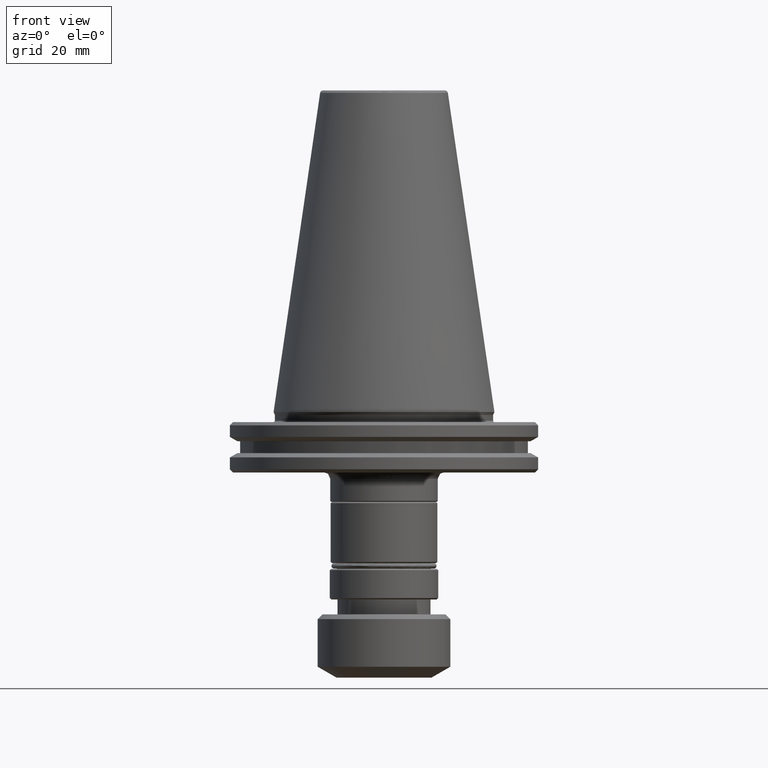
[diagram: clean part render]
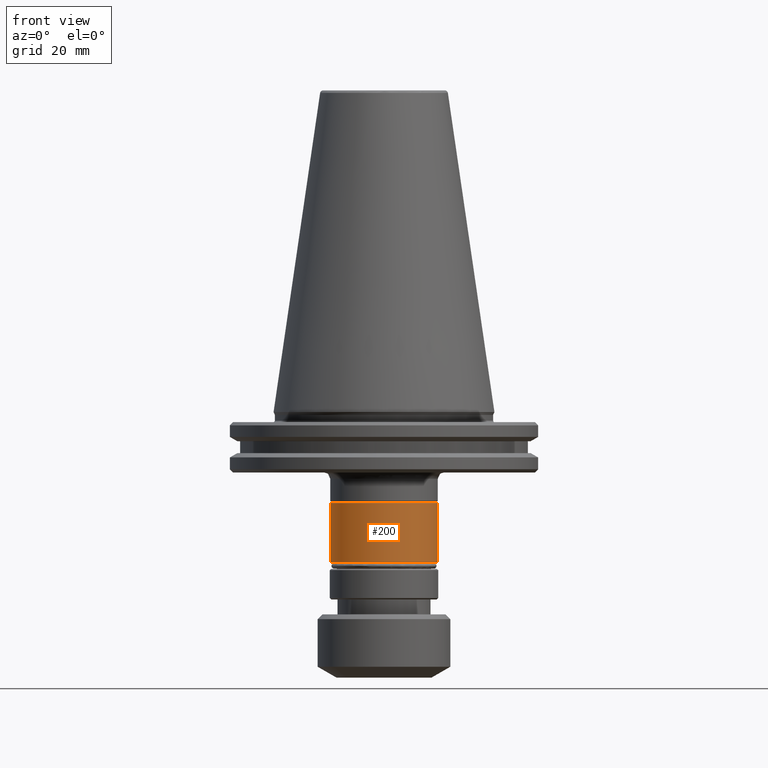
[diagram: same view with one face highlighted and labeled with its STEP entity id]
A machine part, front view. The second image highlights one B-rep face of the part: STEP entity #200.
In plain terms, the highlighted cylindrical surface (partial cylindrical patch) has radius 16.9 mm, axis along (0, 0, 1).
Its self-contained STEP definition (entity closure, byte-faithful):
#22 = AXIS2_PLACEMENT_3D ( 'NONE', #1212, #1209, #1205 ) ;
#38 = EDGE_CURVE ( 'NONE', #600, #1345, #170, .T. ) ;
#43 = CARTESIAN_POINT ( 'NONE',  ( 16.89999999999999900, 0.0000000000000000000, -28.80000000000001500 ) ) ;
#44 = DIRECTION ( 'NONE',  ( -1.000000000000000000, 0.0000000000000000000, 0.0000000000000000000 ) ) ;
#50 = ORIENTED_EDGE ( 'NONE', *, *, #507, .F. ) ;
#66 = VERTEX_POINT ( 'NONE', #1746 ) ;
#153 = DIRECTION ( 'NONE',  ( 0.0000000000000000000, 0.0000000000000000000, 1.000000000000000000 ) ) ;
#161 = CARTESIAN_POINT ( 'NONE',  ( -16.89999999999999900, 2.069653090559026900E-015, 0.0000000000000000000 ) ) ;
#170 = LINE ( 'NONE', #1855, #1971 ) ;
#188 = ORIENTED_EDGE ( 'NONE', *, *, #2100, .F. ) ;
#200 = ADVANCED_FACE ( 'NONE', ( #2342 ), #494, .T. ) ;
#474 = AXIS2_PLACEMENT_3D ( 'NONE', #1254, #1252, #1249 ) ;
#481 = EDGE_CURVE ( 'NONE', #2270, #1920, #2069, .T. ) ;
#494 = CYLINDRICAL_SURFACE ( 'NONE', #1460, 16.89999999999999900 ) ;
#507 = EDGE_CURVE ( 'NONE', #66, #1345, #2376, .T. ) ;
#530 = ORIENTED_EDGE ( 'NONE', *, *, #481, .T. ) ;
#551 = CIRCLE ( 'NONE', #1501, 16.89999999999999900 ) ;
#600 = VERTEX_POINT ( 'NONE', #1081 ) ;
#616 = DIRECTION ( 'NONE',  ( 0.0000000000000000000, 0.0000000000000000000, 1.000000000000000000 ) ) ;
#743 = VERTEX_POINT ( 'NONE', #960 ) ;
#870 = CARTESIAN_POINT ( 'NONE',  ( -16.89999999999999900, 2.069653090559026900E-015, -47.40000000000002000 ) ) ;
#960 = CARTESIAN_POINT ( 'NONE',  ( -16.89999999999999900, 2.069653090559026900E-015, -28.80000000000001500 ) ) ;
#1081 = CARTESIAN_POINT ( 'NONE',  ( 16.89999999999999900, 0.0000000000000000000, -47.40000000000002000 ) ) ;
#1205 = DIRECTION ( 'NONE',  ( -1.000000000000000000, 0.0000000000000000000, 0.0000000000000000000 ) ) ;
#1209 = DIRECTION ( 'NONE',  ( -0.0000000000000000000, -0.0000000000000000000, 1.000000000000000000 ) ) ;
#1212 = CARTESIAN_POINT ( 'NONE',  ( 0.0000000000000000000, 0.0000000000000000000, -28.80000000000001500 ) ) ;
#1234 = EDGE_CURVE ( 'NONE', #2270, #743, #1926, .T. ) ;
#1249 = DIRECTION ( 'NONE',  ( 1.000000000000000000, 0.0000000000000000000, 0.0000000000000000000 ) ) ;
#1252 = DIRECTION ( 'NONE',  ( 0.0000000000000000000, 0.0000000000000000000, 1.000000000000000000 ) ) ;
#1254 = CARTESIAN_POINT ( 'NONE',  ( 0.0000000000000000000, 0.0000000000000000000, -47.40000000000002000 ) ) ;
#1315 = CIRCLE ( 'NONE', #1665, 16.89999999999999900 ) ;
#1345 = VERTEX_POINT ( 'NONE', #43 ) ;
#1409 = CARTESIAN_POINT ( 'NONE',  ( 0.0000000000000000000, -16.90000000000000600, -47.40000000000002000 ) ) ;
#1460 = AXIS2_PLACEMENT_3D ( 'NONE', #1703, #2324, #1705 ) ;
#1463 = ORIENTED_EDGE ( 'NONE', *, *, #38, .T. ) ;
#1501 = AXIS2_PLACEMENT_3D ( 'NONE', #2295, #616, #2015 ) ;
#1541 = EDGE_CURVE ( 'NONE', #1920, #600, #551, .T. ) ;
#1636 = EDGE_LOOP ( 'NONE', ( #2361, #530, #1785, #1463, #50, #188 ) ) ;
#1665 = AXIS2_PLACEMENT_3D ( 'NONE', #1870, #2027, #44 ) ;
#1703 = CARTESIAN_POINT ( 'NONE',  ( 0.0000000000000000000, 0.0000000000000000000, 0.0000000000000000000 ) ) ;
#1705 = DIRECTION ( 'NONE',  ( 1.000000000000000000, 0.0000000000000000000, 0.0000000000000000000 ) ) ;
#1746 = CARTESIAN_POINT ( 'NONE',  ( 2.069653090559026500E-015, -16.89999999999999500, -28.80000000000001500 ) ) ;
#1771 = VECTOR ( 'NONE', #153, 1000.000000000000000 ) ;
#1785 = ORIENTED_EDGE ( 'NONE', *, *, #1541, .T. ) ;
#1855 = CARTESIAN_POINT ( 'NONE',  ( 16.89999999999999900, 0.0000000000000000000, 0.0000000000000000000 ) ) ;
#1870 = CARTESIAN_POINT ( 'NONE',  ( 0.0000000000000000000, 0.0000000000000000000, -28.80000000000001500 ) ) ;
#1920 = VERTEX_POINT ( 'NONE', #1409 ) ;
#1926 = LINE ( 'NONE', #161, #1771 ) ;
#1971 = VECTOR ( 'NONE', #2371, 1000.000000000000000 ) ;
#2015 = DIRECTION ( 'NONE',  ( 1.000000000000000000, 0.0000000000000000000, 0.0000000000000000000 ) ) ;
#2027 = DIRECTION ( 'NONE',  ( -0.0000000000000000000, -0.0000000000000000000, 1.000000000000000000 ) ) ;
#2069 = CIRCLE ( 'NONE', #474, 16.89999999999999900 ) ;
#2100 = EDGE_CURVE ( 'NONE', #743, #66, #1315, .T. ) ;
#2270 = VERTEX_POINT ( 'NONE', #870 ) ;
#2295 = CARTESIAN_POINT ( 'NONE',  ( 0.0000000000000000000, 0.0000000000000000000, -47.40000000000002000 ) ) ;
#2324 = DIRECTION ( 'NONE',  ( 0.0000000000000000000, 0.0000000000000000000, 1.000000000000000000 ) ) ;
#2342 = FACE_OUTER_BOUND ( 'NONE', #1636, .T. ) ;
#2361 = ORIENTED_EDGE ( 'NONE', *, *, #1234, .F. ) ;
#2371 = DIRECTION ( 'NONE',  ( 0.0000000000000000000, 0.0000000000000000000, 1.000000000000000000 ) ) ;
#2376 = CIRCLE ( 'NONE', #22, 16.89999999999999900 ) ;